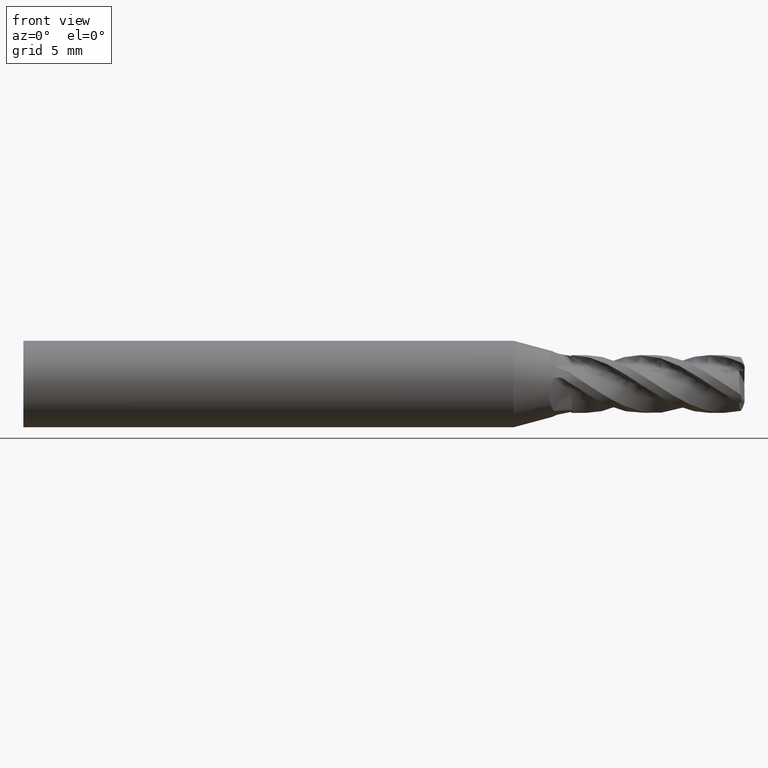
[diagram: clean part render]
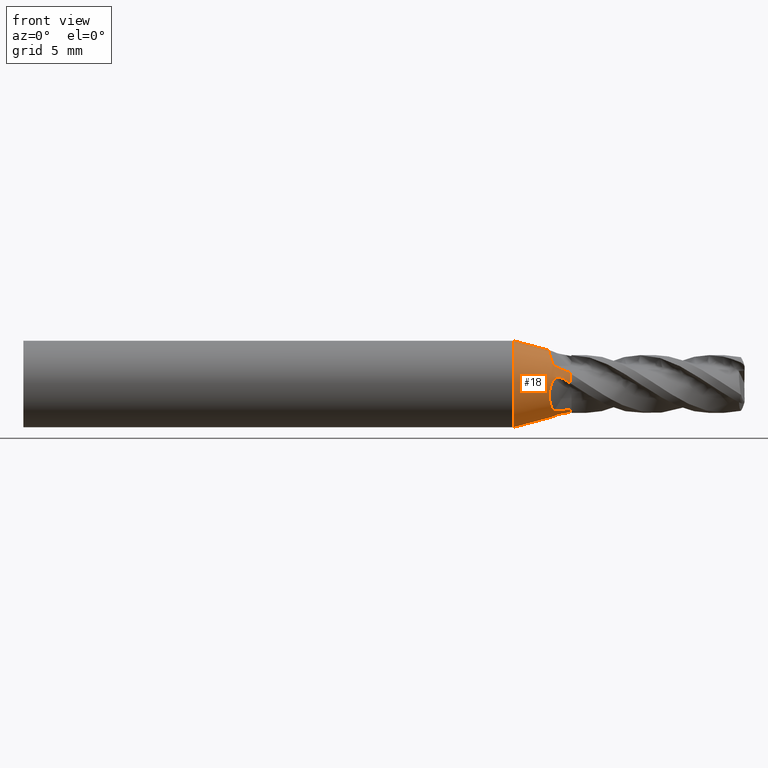
[diagram: same view with one face highlighted and labeled with its STEP entity id]
A machine part, front view. The second image highlights one B-rep face of the part: STEP entity #18.
In plain terms, the highlighted conical surface has half-angle 15 deg.
Its self-contained STEP definition (entity closure, byte-faithful):
#18 = ADVANCED_FACE ( 'NONE', ( #7244 ), #7241, .T. ) ;
#113 = EDGE_CURVE ( 'NONE', #7042, #7038, #7225, .T. ) ;
#118 = EDGE_CURVE ( 'NONE', #6967, #7042, #5094, .T. ) ;
#124 = EDGE_CURVE ( 'NONE', #6998, #6991, #5091, .T. ) ;
#127 = EDGE_CURVE ( 'NONE', #6989, #6964, #5078, .T. ) ;
#129 = EDGE_CURVE ( 'NONE', #7037, #7035, #7223, .T. ) ;
#163 = EDGE_CURVE ( 'NONE', #6962, #6955, #7285, .T. ) ;
#208 = EDGE_CURVE ( 'NONE', #6962, #6965, #7098, .T. ) ;
#232 = EDGE_CURVE ( 'NONE', #6991, #6989, #7085, .T. ) ;
#238 = AXIS2_PLACEMENT_3D ( 'NONE', #6912, #6929, #6926 ) ;
#243 = AXIS2_PLACEMENT_3D ( 'NONE', #4805, #4813, #4814 ) ;
#247 = EDGE_CURVE ( 'NONE', #7037, #6979, #840, .T. ) ;
#264 = AXIS2_PLACEMENT_3D ( 'NONE', #3053, #3060, #3061 ) ;
#265 = EDGE_CURVE ( 'NONE', #6955, #6964, #826, .T. ) ;
#271 = EDGE_CURVE ( 'NONE', #6998, #6988, #7944, .T. ) ;
#280 = EDGE_CURVE ( 'NONE', #6988, #6979, #796, .T. ) ;
#310 = AXIS2_PLACEMENT_3D ( 'NONE', #2596, #2607, #2608 ) ;
#318 = EDGE_CURVE ( 'NONE', #7038, #7035, #8340, .T. ) ;
#341 = EDGE_CURVE ( 'NONE', #6965, #6967, #1794, .T. ) ;
#796 = B_SPLINE_CURVE_WITH_KNOTS ( 'NONE', 3,
 ( #3073, #3086, #3087, #3088 ),
 .UNSPECIFIED., .F., .F.,
 ( 4, 4 ),
 ( 0.0000000000000000000, 0.001230346457136862200 ),
 .UNSPECIFIED. ) ;
#826 = B_SPLINE_CURVE_WITH_KNOTS ( 'NONE', 3,
 ( #3042, #3046, #3047, #3048 ),
 .UNSPECIFIED., .F., .F.,
 ( 4, 4 ),
 ( 0.0000000000000000000, 0.001230346457134781000 ),
 .UNSPECIFIED. ) ;
#840 = B_SPLINE_CURVE_WITH_KNOTS ( 'NONE', 3,
 ( #2973, #2980, #2981, #2982, #2983, #2984, #2985, #2986, #2987, #2988, #2989, #2990 ),
 .UNSPECIFIED., .F., .F.,
 ( 4, 2, 2, 2, 2, 4 ),
 ( 0.0004594824680005915000, 0.0007483399010498955000, 0.001037197334099199400, 0.001614912200197807600, 0.002192627066296415400, 0.002770341932395024000 ),
 .UNSPECIFIED. ) ;
#1794 = B_SPLINE_CURVE_WITH_KNOTS ( 'NONE', 3,
 ( #4875, #4885, #4886, #4887, #4888, #4889, #4890, #4891 ),
 .UNSPECIFIED., .F., .F.,
 ( 4, 2, 2, 4 ),
 ( 9.951653081613010300E-019, 0.0004188532905428502000, 0.0006282799358142749600, 0.0008377065810856997600 ),
 .UNSPECIFIED. ) ;
#2436 = CARTESIAN_POINT ( 'NONE',  ( 1.699267308337577300, -1.994235222627712700, 0.1981576093233707900 ) ) ;
#2437 = CARTESIAN_POINT ( 'NONE',  ( 1.649284895351102100, -2.004008211484703800, 0.2325368923048885500 ) ) ;
#2438 = CARTESIAN_POINT ( 'NONE',  ( 1.599448372028044600, -2.012855975648510000, 0.2673449510994855800 ) ) ;
#2442 = CARTESIAN_POINT ( 'NONE',  ( 0.8452215927986535000, -2.198668154590936100, 0.3879197947448708700 ) ) ;
#2447 = CARTESIAN_POINT ( 'NONE',  ( 0.7756662137111505200, -2.233047012235748400, 0.3003307022086896800 ) ) ;
#2448 = CARTESIAN_POINT ( 'NONE',  ( 0.7157034602594442000, -2.260364437963238600, 0.2054081946154655300 ) ) ;
#2449 = CARTESIAN_POINT ( 'NONE',  ( 0.6140428156867566700, -2.296890379579669800, 0.0004627854886129841200 ) ) ;
#2450 = CARTESIAN_POINT ( 'NONE',  ( 0.5726883502399223700, -2.305704850579232800, -0.1097722896548608300 ) ) ;
#2451 = CARTESIAN_POINT ( 'NONE',  ( 0.5109934818287585900, -2.300987991453609100, -0.3320876973086137600 ) ) ;
#2452 = CARTESIAN_POINT ( 'NONE',  ( 0.4896922228507379900, -2.287429411116422200, -0.4472442934036319800 ) ) ;
#2453 = CARTESIAN_POINT ( 'NONE',  ( 0.4650812860292589700, -2.238462368270092800, -0.6726016234636603700 ) ) ;
#2454 = CARTESIAN_POINT ( 'NONE',  ( 0.4614334819049378300, -2.203384368543212600, -0.7830251646093684400 ) ) ;
#2455 = CARTESIAN_POINT ( 'NONE',  ( 0.4685211172091442400, -2.112499587214398600, -0.9982532283502223400 ) ) ;
#2456 = CARTESIAN_POINT ( 'NONE',  ( 0.4791262353514674200, -2.058108396599796800, -1.099814306369755000 ) ) ;
#2457 = CARTESIAN_POINT ( 'NONE',  ( 0.5117628435987882100, -1.932769182147141100, -1.291943240204929600 ) ) ;
#2458 = CARTESIAN_POINT ( 'NONE',  ( 0.5340300575215898300, -1.861367102816021500, -1.382688248114356100 ) ) ;
#2459 = CARTESIAN_POINT ( 'NONE',  ( 0.6137123724147701700, -1.631120788432856500, -1.629523257233963300 ) ) ;
#2460 = CARTESIAN_POINT ( 'NONE',  ( 0.6851361017472532600, -1.452187200170915700, -1.765245167666300600 ) ) ;
#2461 = CARTESIAN_POINT ( 'NONE',  ( 0.7654036940142939800, -1.259999999999971400, -1.873361374690966500 ) ) ;
#2467 = CARTESIAN_POINT ( 'NONE',  ( 1.899999999999999000, 0.0000000000000000000, 1.950000000000010400 ) ) ;
#2468 = DIRECTION ( 'NONE',  ( -0.9659258262890680900, 0.0000000000000000000, 0.2588190451025211800 ) ) ;
#2596 = CARTESIAN_POINT ( 'NONE',  ( 1.899999999999999000, 0.0000000000000000000, 0.0000000000000000000 ) ) ;
#2607 = DIRECTION ( 'NONE',  ( -1.000000000000000000, -0.0000000000000000000, -0.0000000000000000000 ) ) ;
#2608 = DIRECTION ( 'NONE',  ( 0.0000000000000000000, 0.0000000000000000000, 1.000000000000000000 ) ) ;
#2770 = CARTESIAN_POINT ( 'NONE',  ( 1.899999999999999000, -0.06426879529591283900, -1.948940615296233000 ) ) ;
#2772 = CARTESIAN_POINT ( 'NONE',  ( 1.849651170900867400, -0.09706902981810586200, -1.961357247204351500 ) ) ;
#2773 = CARTESIAN_POINT ( 'NONE',  ( 1.799443524940557400, -0.1304290323887492300, -1.972910307496196000 ) ) ;
#2774 = CARTESIAN_POINT ( 'NONE',  ( 1.749383754989986400, -0.1642741614563023900, -1.983566732562936900 ) ) ;
#2775 = CARTESIAN_POINT ( 'NONE',  ( 1.699267308337608200, -0.1981576093233564100, -1.994235222627708000 ) ) ;
#2776 = CARTESIAN_POINT ( 'NONE',  ( 1.649284895351144100, -0.2325368923048652400, -2.004008211484693500 ) ) ;
#2777 = CARTESIAN_POINT ( 'NONE',  ( 1.599448372028275900, -0.2673449510992985700, -2.012855975648300000 ) ) ;
#2877 = CARTESIAN_POINT ( 'NONE',  ( 1.599448372028044600, -2.012855975648510000, 0.2673449510994855800 ) ) ;
#2885 = CARTESIAN_POINT ( 'NONE',  ( 1.485237953326700600, -2.033132424239128400, 0.3471144911659929700 ) ) ;
#2886 = CARTESIAN_POINT ( 'NONE',  ( 1.358640355315546400, -2.055230232633451900, 0.4075001744354963000 ) ) ;
#2887 = CARTESIAN_POINT ( 'NONE',  ( 1.160323909459388900, -2.098611665425242000, 0.4590910089581172700 ) ) ;
#2888 = CARTESIAN_POINT ( 'NONE',  ( 1.091894834965197600, -2.114969870596127100, 0.4699191225308685900 ) ) ;
#2889 = CARTESIAN_POINT ( 'NONE',  ( 0.9568010879892210300, -2.153758742181487200, 0.4619571901781097700 ) ) ;
#2890 = CARTESIAN_POINT ( 'NONE',  ( 0.8876789573759099600, -2.177682923657823500, 0.4413851353624006500 ) ) ;
#2891 = CARTESIAN_POINT ( 'NONE',  ( 0.8452215927986535000, -2.198668154590936100, 0.3879197947448708700 ) ) ;
#2973 = CARTESIAN_POINT ( 'NONE',  ( 0.6179649540036054000, 2.844336636879940500E-013, 2.293520255243141300 ) ) ;
#2980 = CARTESIAN_POINT ( 'NONE',  ( 0.5805567116747397700, -0.08966728171272593500, 2.303543763565439700 ) ) ;
#2981 = CARTESIAN_POINT ( 'NONE',  ( 0.5508399663276044600, -0.1814331030785859800, 2.306262934738786600 ) ) ;
#2982 = CARTESIAN_POINT ( 'NONE',  ( 0.5045451318813105600, -0.3681901234560575100, 2.296454554397687500 ) ) ;
#2983 = CARTESIAN_POINT ( 'NONE',  ( 0.4879023464235884800, -0.4642722501726808100, 2.283638293317557200 ) ) ;
#2984 = CARTESIAN_POINT ( 'NONE',  ( 0.4568950083522276800, -0.7463014216847229100, 2.222628405569315300 ) ) ;
#2985 = CARTESIAN_POINT ( 'NONE',  ( 0.4604543010082813900, -0.9304260662162170400, 2.150970749627999700 ) ) ;
#2986 = CARTESIAN_POINT ( 'NONE',  ( 0.5015016823186403400, -1.263539770561614000, 1.960759183734954900 ) ) ;
#2987 = CARTESIAN_POINT ( 'NONE',  ( 0.5393112340569522500, -1.415372592297166700, 1.840824788558794700 ) ) ;
#2988 = CARTESIAN_POINT ( 'NONE',  ( 0.6376507093929924000, -1.673365440802646200, 1.571775683262106400 ) ) ;
#2989 = CARTESIAN_POINT ( 'NONE',  ( 0.6990615622868344700, -1.782247724202358400, 1.420311478253691600 ) ) ;
#2990 = CARTESIAN_POINT ( 'NONE',  ( 0.7654036940142956400, -1.873361374690959000, 1.259999999999977800 ) ) ;
#3042 = CARTESIAN_POINT ( 'NONE',  ( 1.899999999999992100, -0.7823449382964445800, -1.786179273623445400 ) ) ;
#3046 = CARTESIAN_POINT ( 'NONE',  ( 1.514766077571417100, -0.9175007963227458400, -1.839671429145561800 ) ) ;
#3047 = CARTESIAN_POINT ( 'NONE',  ( 1.141392017289853500, -1.085524645006887800, -1.865126881324918400 ) ) ;
#3048 = CARTESIAN_POINT ( 'NONE',  ( 0.7654036940142939800, -1.259999999999971400, -1.873361374690966500 ) ) ;
#3053 = CARTESIAN_POINT ( 'NONE',  ( 1.899999999999999000, 0.0000000000000000000, 0.0000000000000000000 ) ) ;
#3060 = DIRECTION ( 'NONE',  ( -1.000000000000000000, -0.0000000000000000000, -0.0000000000000000000 ) ) ;
#3061 = DIRECTION ( 'NONE',  ( 0.0000000000000000000, 0.0000000000000000000, 1.000000000000000000 ) ) ;
#3073 = CARTESIAN_POINT ( 'NONE',  ( 1.899999999999999000, -1.786179273625984500, 0.7823449382906477700 ) ) ;
#3086 = CARTESIAN_POINT ( 'NONE',  ( 1.514766077569863500, -1.839671429149671900, 0.9175007963152269600 ) ) ;
#3087 = CARTESIAN_POINT ( 'NONE',  ( 1.141392017289666300, -1.865126881326438800, 1.085524645004716500 ) ) ;
#3088 = CARTESIAN_POINT ( 'NONE',  ( 0.7654036940142956400, -1.873361374690959000, 1.259999999999977800 ) ) ;
#3509 = CARTESIAN_POINT ( 'NONE',  ( 1.799443524940550700, -1.972910307496196400, 0.1304290323887468400 ) ) ;
#3512 = CARTESIAN_POINT ( 'NONE',  ( 1.749383754989967600, -1.983566732562939600, 0.1642741614563083800 ) ) ;
#4805 = CARTESIAN_POINT ( 'NONE',  ( -2.018653347947311900, 0.0000000000000000000, 0.0000000000000000000 ) ) ;
#4813 = DIRECTION ( 'NONE',  ( -1.000000000000000000, -0.0000000000000000000, -0.0000000000000000000 ) ) ;
#4814 = DIRECTION ( 'NONE',  ( 0.0000000000000000000, 0.0000000000000000000, 1.000000000000000000 ) ) ;
#4875 = CARTESIAN_POINT ( 'NONE',  ( 1.599448372028275900, -0.2673449510992985700, -2.012855975648300000 ) ) ;
#4885 = CARTESIAN_POINT ( 'NONE',  ( 1.485237953326923300, -0.3471144911658249300, -2.033132424239009900 ) ) ;
#4886 = CARTESIAN_POINT ( 'NONE',  ( 1.358640355315693600, -0.4075001744354340700, -2.055230232633423500 ) ) ;
#4887 = CARTESIAN_POINT ( 'NONE',  ( 1.160323909459594500, -0.4590910089580860800, -2.098611665425192700 ) ) ;
#4888 = CARTESIAN_POINT ( 'NONE',  ( 1.091894834965398300, -0.4699191225308572100, -2.114969870596073300 ) ) ;
#4889 = CARTESIAN_POINT ( 'NONE',  ( 0.9568010879893518200, -0.4619571901781140400, -2.153758742181449500 ) ) ;
#4890 = CARTESIAN_POINT ( 'NONE',  ( 0.8876789573759795700, -0.4413851353623909300, -2.177682923657807000 ) ) ;
#4891 = CARTESIAN_POINT ( 'NONE',  ( 0.8452215927987043500, -0.3879197947448287400, -2.198668154590909500 ) ) ;
#4924 = CARTESIAN_POINT ( 'NONE',  ( 1.899999999999992100, -0.7823449382964445800, -1.786179273623445400 ) ) ;
#4925 = CARTESIAN_POINT ( 'NONE',  ( 1.899999999999999000, -0.06426879529591283900, -1.948940615296233000 ) ) ;
#4927 = CARTESIAN_POINT ( 'NONE',  ( 0.7654036940142939800, -1.259999999999971400, -1.873361374690966500 ) ) ;
#4928 = CARTESIAN_POINT ( 'NONE',  ( 1.599448372028275900, -0.2673449510992985700, -2.012855975648300000 ) ) ;
#4930 = CARTESIAN_POINT ( 'NONE',  ( 0.8452215927987043500, -0.3879197947448287400, -2.198668154590909500 ) ) ;
#4942 = CARTESIAN_POINT ( 'NONE',  ( 0.7654036940142956400, -1.873361374690959000, 1.259999999999977800 ) ) ;
#4951 = CARTESIAN_POINT ( 'NONE',  ( 1.899999999999999000, -1.786179273625984500, 0.7823449382906477700 ) ) ;
#4952 = CARTESIAN_POINT ( 'NONE',  ( 0.8452215927986535000, -2.198668154590936100, 0.3879197947448708700 ) ) ;
#4954 = CARTESIAN_POINT ( 'NONE',  ( 1.599448372028044600, -2.012855975648510000, 0.2673449510994855800 ) ) ;
#4960 = CARTESIAN_POINT ( 'NONE',  ( 1.899999999999999000, -1.948940615296240100, 0.06426879529585981200 ) ) ;
#4991 = CARTESIAN_POINT ( 'NONE',  ( -2.018653347947311900, 0.0000000000000000000, 3.000000000000009800 ) ) ;
#4993 = CARTESIAN_POINT ( 'NONE',  ( 0.6179649540036054000, 2.844336636879940500E-013, 2.293520255243141300 ) ) ;
#4994 = CARTESIAN_POINT ( 'NONE',  ( -2.018653347947311900, 3.673940397442071200E-016, -3.000000000000009800 ) ) ;
#4998 = CARTESIAN_POINT ( 'NONE',  ( 0.6179649540036056300, -2.847250430218495300E-013, -2.293520255243141300 ) ) ;
#5078 = B_SPLINE_CURVE_WITH_KNOTS ( 'NONE', 3,
 ( #2442, #2447, #2448, #2449, #2450, #2451, #2452, #2453, #2454, #2455, #2456, #2457, #2458, #2459, #2460, #2461 ),
 .UNSPECIFIED., .F., .F.,
 ( 4, 2, 2, 2, 2, 2, 2, 4 ),
 ( 0.0000000000000000000, 0.0003462927415493804400, 0.0006925854830987608800, 0.001038878224648141300, 0.001385170966197521800, 0.001731463707746902000, 0.002077756449296282100, 0.002770341932395042200 ),
 .UNSPECIFIED. ) ;
#5091 = B_SPLINE_CURVE_WITH_KNOTS ( 'NONE', 3,
 ( #6794, #6817, #3509, #3512, #2436, #2437, #2438 ),
 .UNSPECIFIED., .F., .F.,
 ( 4, 3, 4 ),
 ( 5.262849574256341100E-019, 0.0001840795874581824700, 0.0003683674627979231200 ),
 .UNSPECIFIED. ) ;
#5094 = B_SPLINE_CURVE_WITH_KNOTS ( 'NONE', 3,
 ( #6753, #6778, #6779, #6780 ),
 .UNSPECIFIED., .F., .F.,
 ( 4, 4 ),
 ( 0.0000000000000000000, 0.0004594824680005911800 ),
 .UNSPECIFIED. ) ;
#6744 = CARTESIAN_POINT ( 'NONE',  ( 1.899999999999999000, 2.388061258337351500E-016, -1.950000000000010400 ) ) ;
#6752 = DIRECTION ( 'NONE',  ( -0.9659258262890680900, 3.169619151431770500E-017, -0.2588190451025211800 ) ) ;
#6753 = CARTESIAN_POINT ( 'NONE',  ( 0.8452215927987043500, -0.3879197947448287400, -2.198668154590909500 ) ) ;
#6778 = CARTESIAN_POINT ( 'NONE',  ( 0.7529312459005694800, -0.2717012097744012600, -2.244284133392686600 ) ) ;
#6779 = CARTESIAN_POINT ( 'NONE',  ( 0.6774698499911612200, -0.1426327980054037100, -2.277575966417560800 ) ) ;
#6780 = CARTESIAN_POINT ( 'NONE',  ( 0.6179649540036056300, -2.847250430218495300E-013, -2.293520255243141300 ) ) ;
#6794 = CARTESIAN_POINT ( 'NONE',  ( 1.899999999999999000, -1.948940615296240100, 0.06426879529585981200 ) ) ;
#6817 = CARTESIAN_POINT ( 'NONE',  ( 1.849651170900854700, -1.961357247204364600, 0.09706902981806311800 ) ) ;
#6826 = ORIENTED_EDGE ( 'NONE', *, *, #318, .F. ) ;
#6827 = ORIENTED_EDGE ( 'NONE', *, *, #127, .F. ) ;
#6829 = ORIENTED_EDGE ( 'NONE', *, *, #232, .F. ) ;
#6834 = ORIENTED_EDGE ( 'NONE', *, *, #271, .T. ) ;
#6838 = ORIENTED_EDGE ( 'NONE', *, *, #265, .T. ) ;
#6841 = ORIENTED_EDGE ( 'NONE', *, *, #163, .T. ) ;
#6842 = ORIENTED_EDGE ( 'NONE', *, *, #129, .T. ) ;
#6843 = ORIENTED_EDGE ( 'NONE', *, *, #124, .F. ) ;
#6844 = ORIENTED_EDGE ( 'NONE', *, *, #247, .F. ) ;
#6845 = ORIENTED_EDGE ( 'NONE', *, *, #208, .F. ) ;
#6846 = ORIENTED_EDGE ( 'NONE', *, *, #280, .T. ) ;
#6912 = CARTESIAN_POINT ( 'NONE',  ( 1.899999999999999000, 0.0000000000000000000, 0.0000000000000000000 ) ) ;
#6926 = DIRECTION ( 'NONE',  ( 0.0000000000000000000, 0.0000000000000000000, 1.000000000000000000 ) ) ;
#6929 = DIRECTION ( 'NONE',  ( -1.000000000000000000, -0.0000000000000000000, -0.0000000000000000000 ) ) ;
#6955 = VERTEX_POINT ( 'NONE', #4924 ) ;
#6962 = VERTEX_POINT ( 'NONE', #4925 ) ;
#6964 = VERTEX_POINT ( 'NONE', #4927 ) ;
#6965 = VERTEX_POINT ( 'NONE', #4928 ) ;
#6967 = VERTEX_POINT ( 'NONE', #4930 ) ;
#6979 = VERTEX_POINT ( 'NONE', #4942 ) ;
#6988 = VERTEX_POINT ( 'NONE', #4951 ) ;
#6989 = VERTEX_POINT ( 'NONE', #4952 ) ;
#6991 = VERTEX_POINT ( 'NONE', #4954 ) ;
#6998 = VERTEX_POINT ( 'NONE', #4960 ) ;
#7035 = VERTEX_POINT ( 'NONE', #4991 ) ;
#7037 = VERTEX_POINT ( 'NONE', #4993 ) ;
#7038 = VERTEX_POINT ( 'NONE', #4994 ) ;
#7042 = VERTEX_POINT ( 'NONE', #4998 ) ;
#7085 = B_SPLINE_CURVE_WITH_KNOTS ( 'NONE', 3,
 ( #2877, #2885, #2886, #2887, #2888, #2889, #2890, #2891 ),
 .UNSPECIFIED., .F., .F.,
 ( 4, 2, 2, 4 ),
 ( 0.0000000000000000000, 0.0004188532905426345000, 0.0006282799358139516500, 0.0008377065810852686800 ),
 .UNSPECIFIED. ) ;
#7098 = B_SPLINE_CURVE_WITH_KNOTS ( 'NONE', 3,
 ( #2770, #2772, #2773, #2774, #2775, #2776, #2777 ),
 .UNSPECIFIED., .F., .F.,
 ( 4, 3, 4 ),
 ( 2.944487310430057200E-018, 0.0001840795874581380100, 0.0003683674627975709700 ),
 .UNSPECIFIED. ) ;
#7116 = VECTOR ( 'NONE', #6752, 1000.000000000000100 ) ;
#7185 = VECTOR ( 'NONE', #2468, 1000.000000000000100 ) ;
#7223 = LINE ( 'NONE', #2467, #7185 ) ;
#7225 = LINE ( 'NONE', #6744, #7116 ) ;
#7241 = CONICAL_SURFACE ( 'NONE', #238, 1.950000000000010400, 0.2617993877991499100 ) ;
#7244 = FACE_OUTER_BOUND ( 'NONE', #7409, .T. ) ;
#7285 = CIRCLE ( 'NONE', #310, 1.950000000000010400 ) ;
#7409 = EDGE_LOOP ( 'NONE', ( #7428, #8073, #8179, #6845, #6841, #6838, #6827, #6829, #6843, #6834, #6846, #6844, #6842, #6826 ) ) ;
#7428 = ORIENTED_EDGE ( 'NONE', *, *, #113, .F. ) ;
#7944 = CIRCLE ( 'NONE', #264, 1.950000000000010400 ) ;
#8073 = ORIENTED_EDGE ( 'NONE', *, *, #118, .F. ) ;
#8179 = ORIENTED_EDGE ( 'NONE', *, *, #341, .F. ) ;
#8340 = CIRCLE ( 'NONE', #243, 3.000000000000009800 ) ;